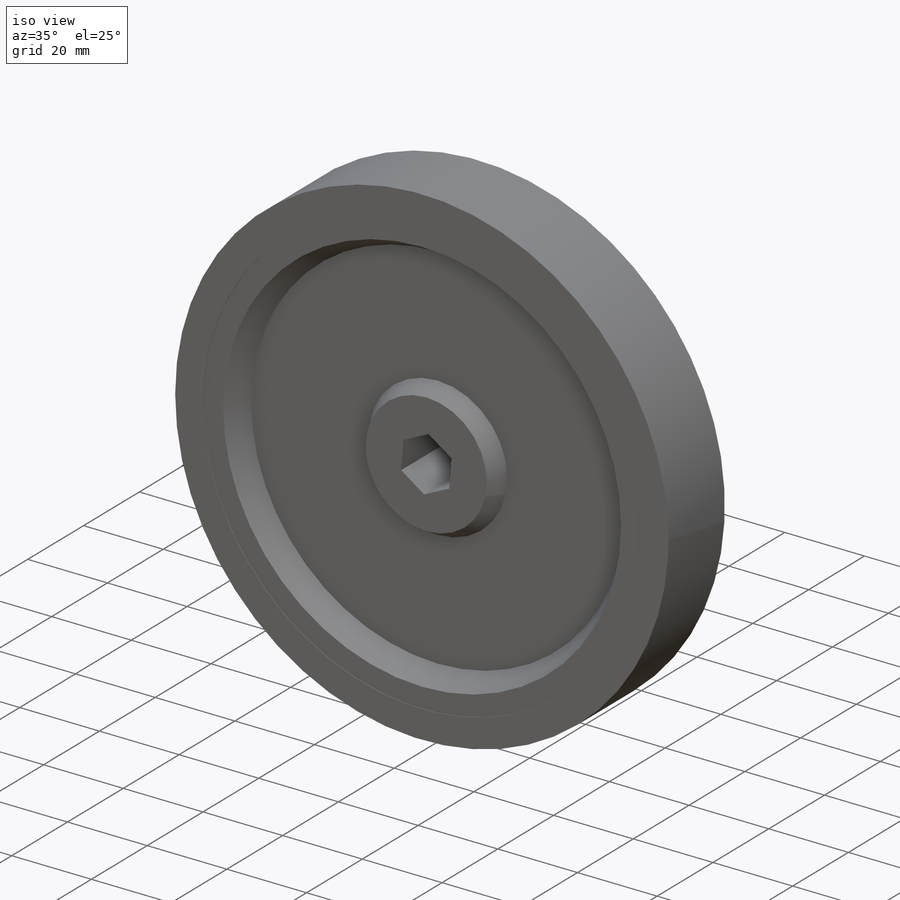
[diagram: iso view]
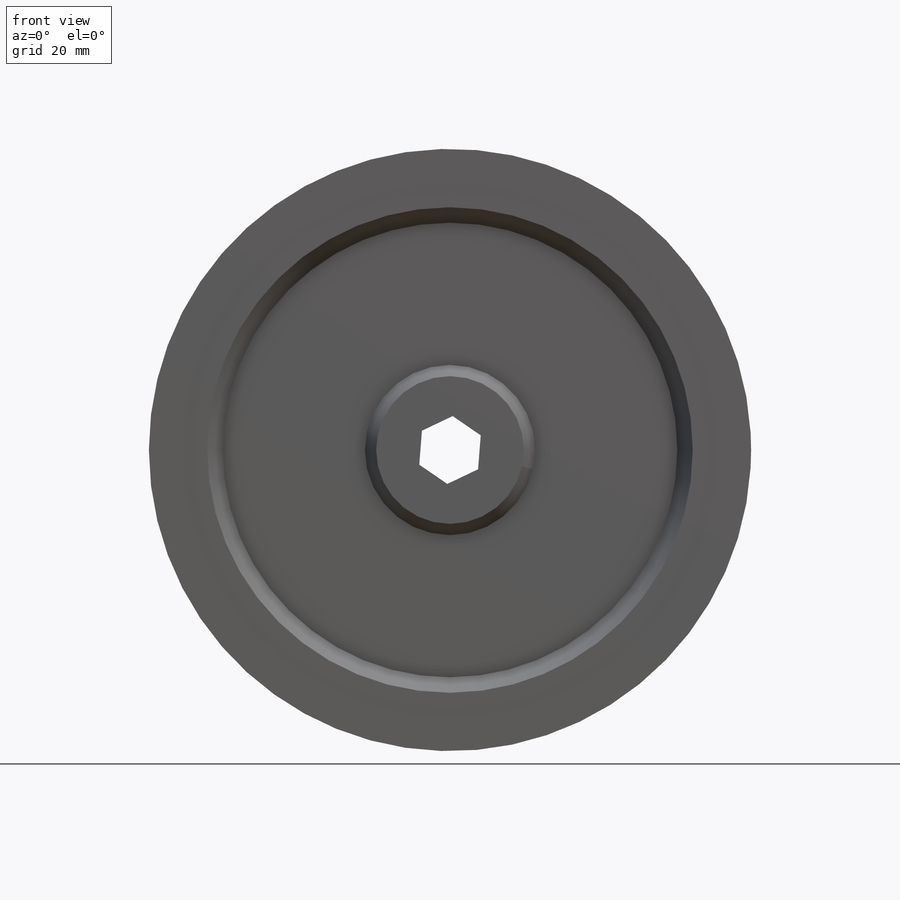
[diagram: front view]
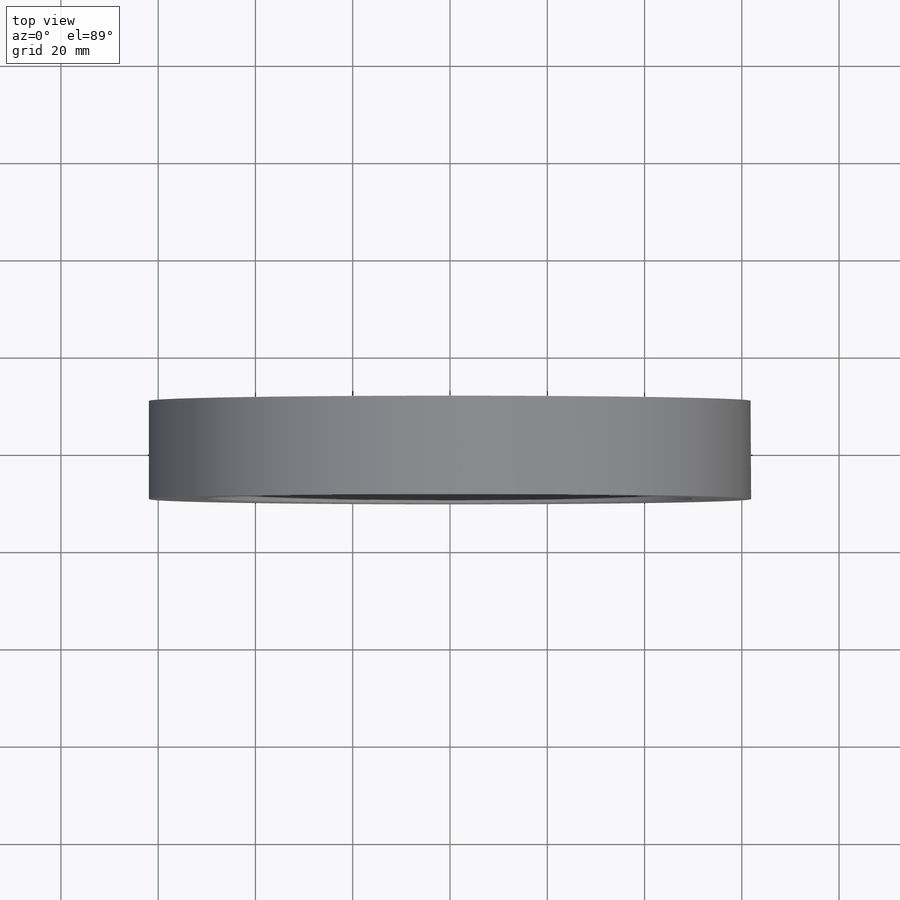
[diagram: top view]
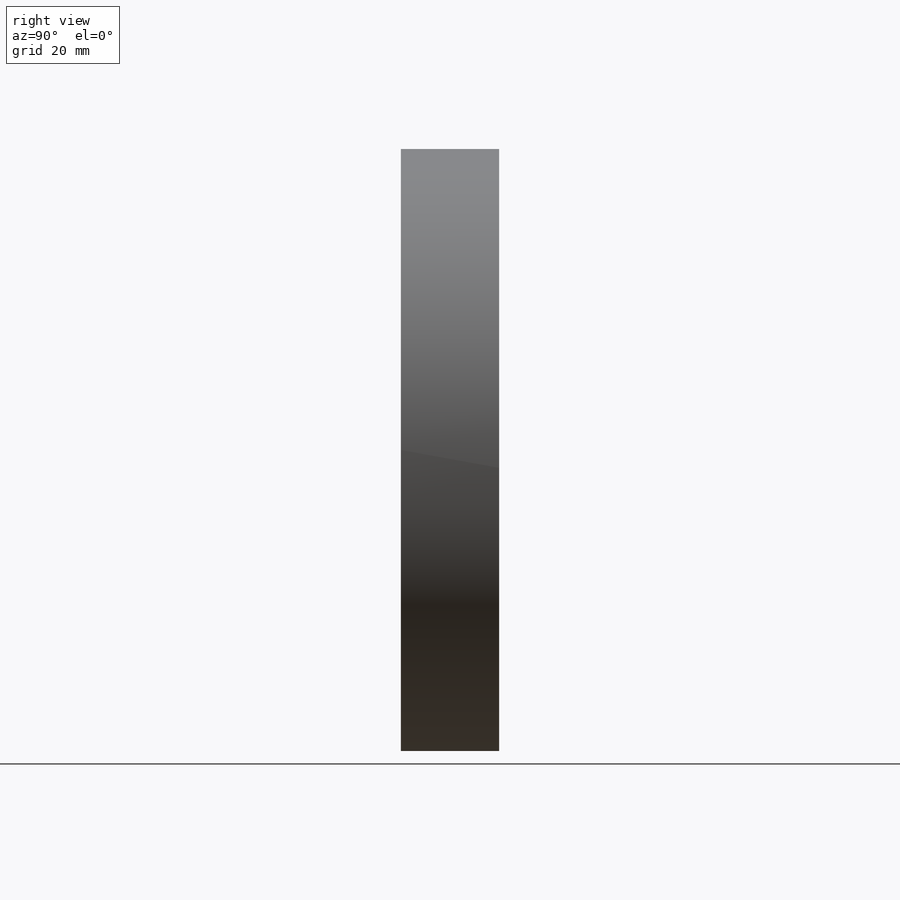
[diagram: right view]
SOLIDWORKS PART (.sldprt)
format: sldprt  version: not decoded by parser v0  size: 273,920 bytes
history: native  units: mm
features: sketch x8, extrude x5, cut_extrude x3, material x1 (+13 scaffold rows collapsed)
feature tree (30):
  scaffold x13  (default folders/planes/origin — collapsed)
  material  "Material <not specified>"
  sketch  "Sketch1"  dims[D1=123.825mm]
  extrude  "Boss-Extrude1"  Depth=20mm
  sketch  "Sketch4"  dims[D1=55.9125mm]
  cut_extrude  "Cut-Extrude1"  Depth=5.5mm
  sketch  "Sketch5"  dims[D1=55.9125mm]
  cut_extrude  "Cut-Extrude2"  Depth=5.5mm
  sketch  "Sketch6"  dims[D1=20.0mm]
  extrude  "Boss-Extrude2"  Depth=4mm
  sketch  "Sketch9"  dims[D1=20.0mm]
  extrude  "Boss-Extrude3"  Depth=4mm
  sketch  "Sketch10"  dims[D1=7.0mm]
  cut_extrude  "Cut-Extrude4"  Depth=24mm
  sketch  "Sketch12"  dims[D1=5.0mm]
  extrude  "Boss-Extrude4"  Depth=0.1mm
  sketch  "Sketch14"  dims[D1=5.0mm]
  extrude  "Boss-Extrude5"  Depth=0.1mm
decode coverage: 16 of 16 modeling features carry decoded parameters
note: suppression state not decoded; provenance and decode notes live in map.json
